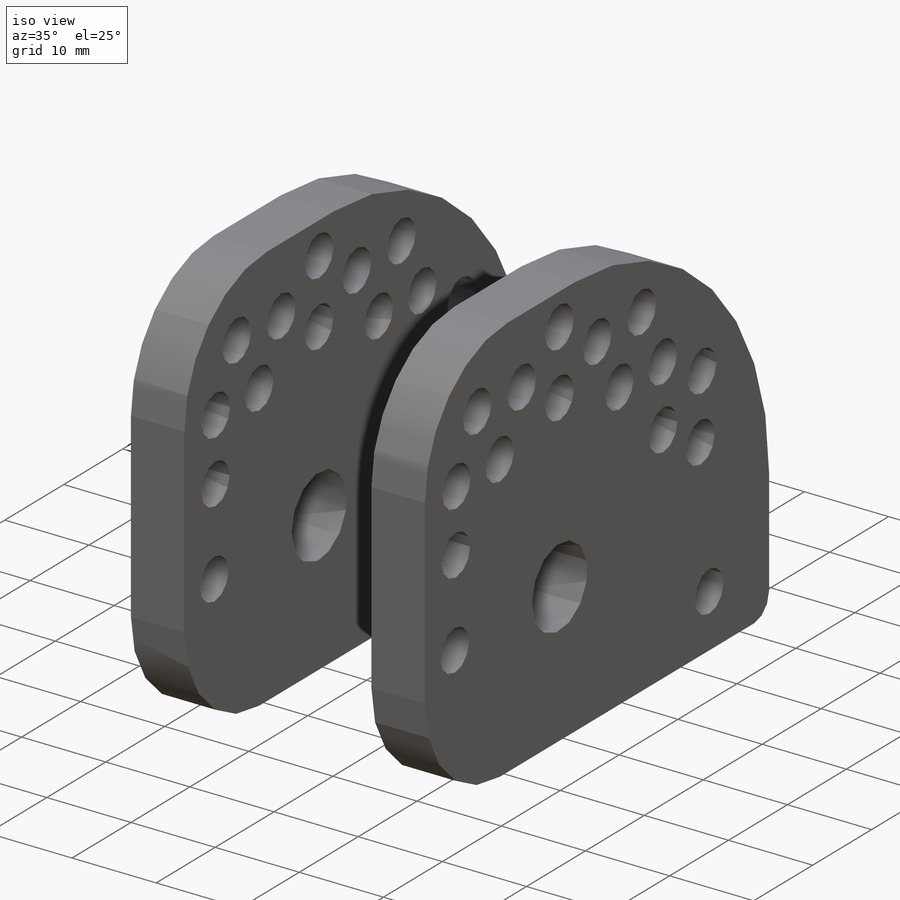
[diagram: iso view]
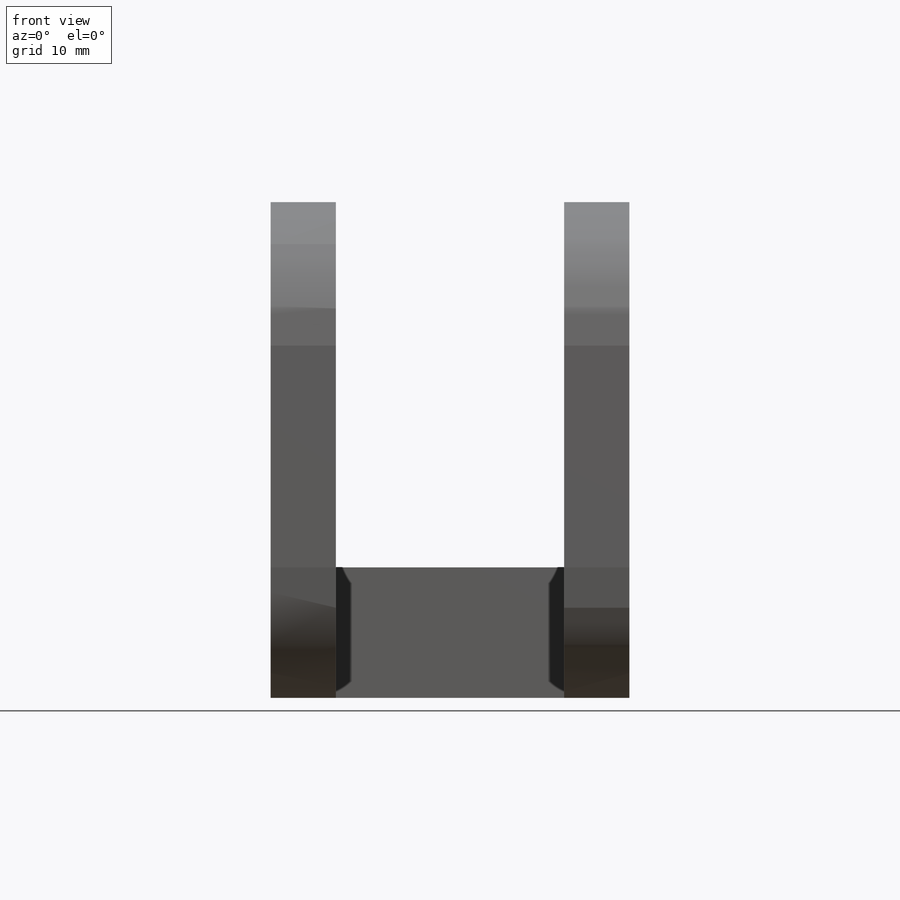
[diagram: front view]
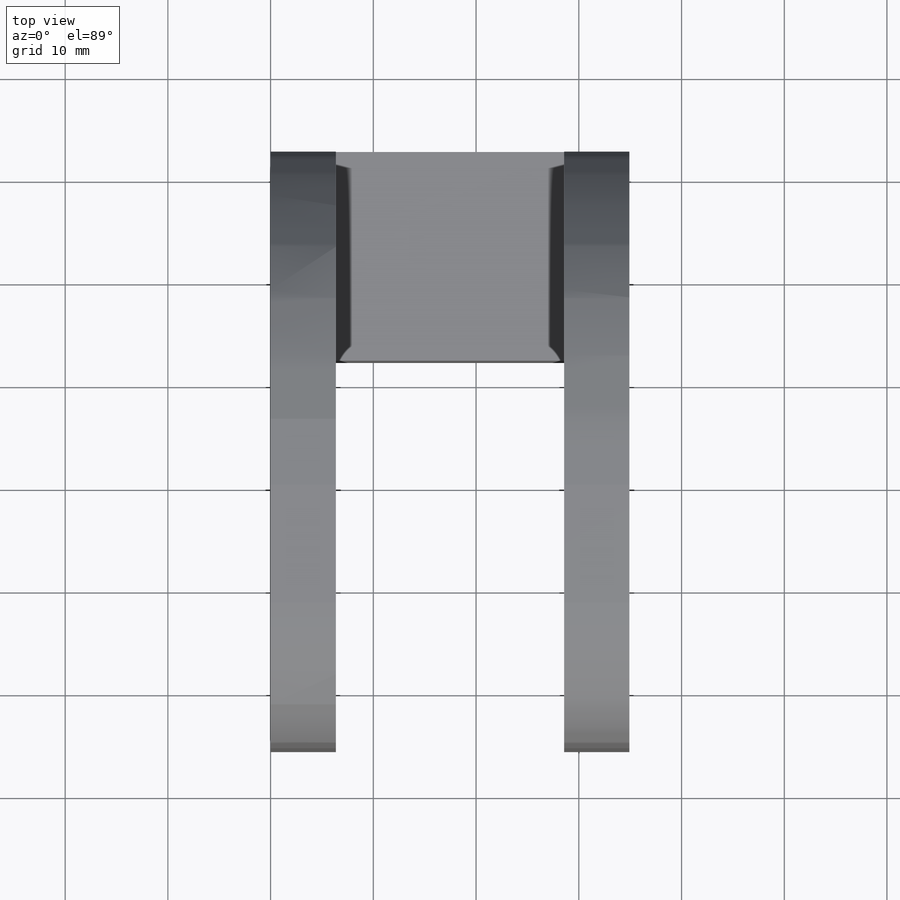
[diagram: top view]
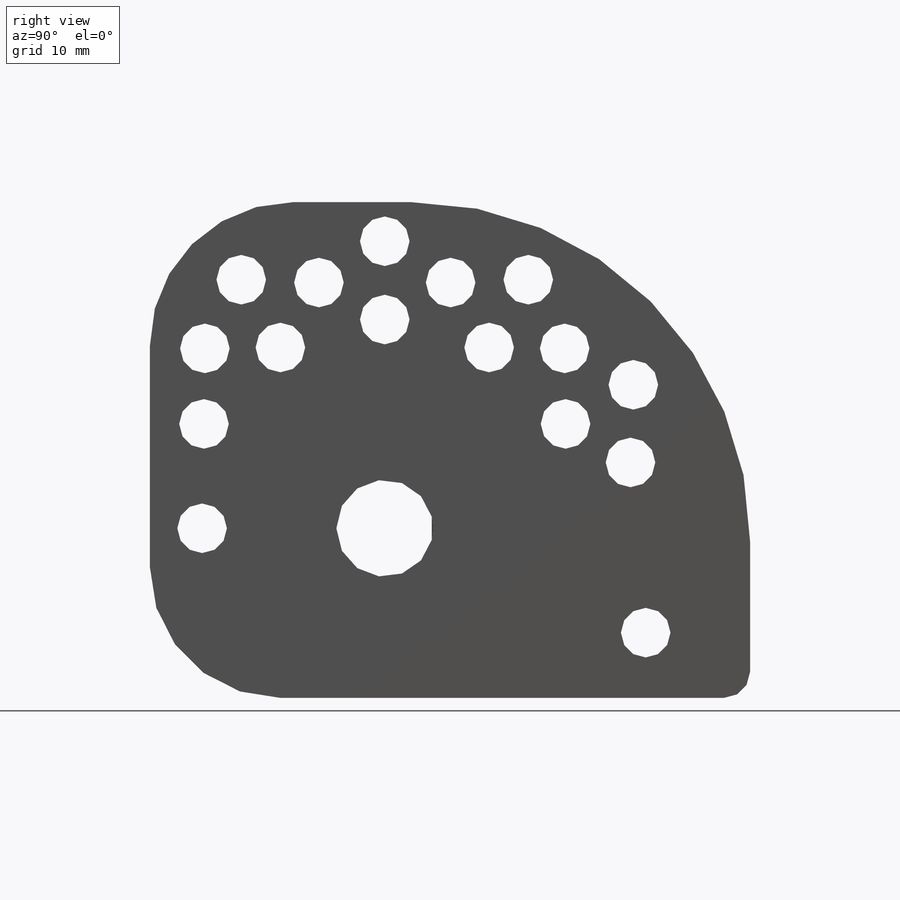
[diagram: right view]
SOLIDWORKS PART (.sldprt)
format: sldprt  version: not decoded by parser v0  size: 4,983,808 bytes
history: native  units: mm
features: sketch x38, cut_extrude x27, fillet x10, extrude x9, pattern_circular x3, material x1 (+17 scaffold rows collapsed; 6 parser-record rows omitted)
feature tree (111):
  scaffold x17  (default folders/planes/origin — collapsed)
  material  "6061-T6 (SS)"
  sketch  "Top Outline"  dims[c1.D11=6.35mm c1.D1=156.21mm c1.D2=33.02mm c1.D3=33.02mm c2.D2=33.02mm c2.D3=33.02mm c2.D4=22.86mm c2.D5=22.86mm c3.D4=22.86mm c3.D1=156.21mm c3.D3=33.02mm c4.D1=156.21mm c4.D2=22.86mm c4.D3=66.04mm c4.D4=33.02mm c4.D5=33.02mm c4.D6=56.515mm c4.D7=8.89mm c5.D3=66.04mm c5.D4=33.02mm c5.D5=25.4mm c5.D2=56.515mm c5.D6=22.86mm c5.D8=165.1mm c6.D2=22.86mm c6.D6=56.515mm c6.D9=73.66mm c6.D10=132.08mm c6.D8=266.7mm c7.D10=165.1mm c7.D11=80.01mm]
  sketch  "Side Outline"  dims[c1.D5=7.9248mm c1.D10=6.35mm c1.D1=156.21mm c1.D2=25.4mm c1.D3=8.255mm c1.D4=11.43mm c2.D3=8.255mm c2.D4=16.51mm c2.D6=73.66mm c2.D2=15.875mm c2.D7=~24.227425mm c3.D2=22.86mm c3.D7=15.24mm c3.D3=25.4mm c3.D8=8.89mm c3.D9=16.51mm c3.D11=179.832mm c3.D12=56.515mm]
  parser-record x6  (decoder bookkeeping rows leaked as tree rows — omitted from the tree; the rows remain in map.json)
  sketch  "Sketch1"  dims[c1.D4=8.89mm c1.D1=~142.797972mm c2.D1=~179.977373deg c3.D1=~142.797972mm c4.D1=~0.022627deg c5.D1=15.24mm c5.D2=12.7mm c5.D3=168.91mm]
  extrude  "Center MC Body "  Depth=9.525mm
  sketch  "Sketch2"  dims[D3=7.9248mm D1=8.89mm D2=16.51mm]
  cut_extrude  "Center MC Hole"  Depth=9.525mm
  sketch  "Sketch3"  dims[c1.D1=19.05mm c1.D2=25.4mm c1.D3=6.35mm c1.D4=66.675mm c1.D5=6.35mm c2.D3=8.89mm c2.D4=56.515mm c2.D5=12.7mm]
  cut_extrude  "Cut Slot"  Depth=9.525mm
  fillet  "Fillet1"  Radius=12.7mm
  fillet  "Fillet2"  Radius=12.7mm
  sketch  "Sketch5"
  cut_extrude  "Cut-Extrude1"  [1 undecoded]
  sketch  "Sketch55"  dims[D1=0.0mm]
  extrude  "Add Thickness 0.25"  Depth=6.35mm
  sketch  "Sketch56"  dims[D1=9.525mm D2=9.525mm D3=50.8mm]
  cut_extrude  "Cut MC Slot"  [1 undecoded]
  sketch  "Sketch6"  dims[D1=25.4mm D2=12.7mm D3=177.8mm]
  extrude  "Top Center Body"  Depth=15.875mm
  sketch  "Sketch7"  dims[c1.D1=25.4mm c1.D2=35.56mm c1.D3=6.35mm c2.D1=19.05mm c2.D2=58.42mm c2.D4=12.7mm]
  cut_extrude  "Cut-Extrude31"  [1 undecoded]
  sketch  "Sketch9"  dims[D1=6.35mm]
  cut_extrude  "TC-Cut Holes"  [1 undecoded]
  sketch  "Sketch11"  dims[c1.D1=9.525mm c1.D2=8.89mm c1.D3=7.9375mm c1.D4=58.42mm c1.D5=33.02mm c1.D6=9.525mm c1.D7=~15.884799mm c2.D5=15.875mm]
  cut_extrude  "TC-Cut Slots"  [1 undecoded]
  fillet  "Fillet8"  Radius=6.35mm
  fillet  "Fillet9"  Radius=3.175mm
  sketch  "Sketch12"
  cut_extrude  "Cut-Extrude2"  [1 undecoded]
  sketch  "Sketch13"  dims[c1.D1=12.7mm c1.D2=12.7mm c1.D3=3.81mm c2.D2=12.7mm c2.D1=6.35mm]
  extrude  "Boss-Extrude1"  [1 undecoded]
  fillet  "Fillet3"  Radius=3.175mm
  sketch  "Sketch14"  dims[D3=9.4234mm D1=27.94mm D2=22.86mm]
  extrude  "Boss-Extrude2"  Depth=9.525mm
  sketch  "Sketch15"
  cut_extrude  "Cut-Extrude3"  [1 undecoded]
  fillet  "Fillet for Brake Pivot"  Radius=6.35mm
  sketch  "Sketch16"  dims[c1.D1=15.24mm c1.D2=0.0mm c1.D3=15.24mm c2.D2=12.7mm]
  cut_extrude  "Cut for Throttle n Brake"  Depth=9.525mm
  sketch  "Sketch17"  dims[c1.D3=30.48mm c1.D4=4.826mm c1.D9=4.826mm c2.D3=25.4mm c2.D4=71.12mm c2.D1=58.42mm c2.D2=50.8mm c2.D5=~13.264571mm c3.D5=30.0deg c3.D6=~13.40688mm c4.D6=30.0deg c4.D7=15.24mm c5.D7=30.0deg c5.D8=~13.40688mm c6.D8=30.0deg c6.D9=21.59mm c7.D9=45.0deg c7.D10=21.59mm c8.D10=45.0deg c8.D3=47.625mm c8.D2=48.26mm c8.D4=23.495mm]
  extrude  "Boss-Extrude3"  Depth=9.525mm
  sketch  "Sketch44"  dims[D1=0.0mm]
  extrude  "Boss-Extrude4"  Depth=25.4mm
  sketch  "Sketch20"  dims[D1=25.4mm D2=50.8mm D3=63.5mm D4=35.56mm D5=4.826mm]
  cut_extrude  "Cut-Extrude6"  [1 undecoded]
  sketch  "Sketch21"  dims[c1.D1=40.64mm c1.D2=25.4mm c2.D2=30.0deg]
  cut_extrude  "Cut-Extrude7"  [1 undecoded]
  pattern_circular  "CirPattern2"  Count=5 Angle=30deg
  sketch  "Sketch22"  dims[c1.D1=49.53mm c1.D2=31.75mm c2.D2=45.0deg]
  cut_extrude  "Cut-Extrude10"  [1 undecoded]
  pattern_circular  "CirPattern3"  Count=5 Angle=30deg
  sketch  "Sketch24"  dims[c1.D1=55.88mm c1.D2=~14.017571mm c2.D2=60.0deg]
  cut_extrude  "Cut-Extrude11"  [1 undecoded]
  pattern_circular  "CirPattern4"  Count=4 Angle=30deg
  sketch  "Sketch48"  dims[D1=6.35mm]
  cut_extrude  "Cut-Extrude24"  Depth=38.1mm
  sketch  "Sketch49"  dims[D1=12.7mm]
  cut_extrude  "Cut-Extrude25"  [1 undecoded]
  fillet  "Fillet4"  Radius=12.7mm
  fillet  "Fillet5"  Radius=33.02mm
  fillet  "Fillet6"  Radius=13.97mm
  sketch  "Sketch53"  dims[D1=4.826mm D2=6.35mm D3=10.16mm]
  cut_extrude  "Cut-Extrude29"  [1 undecoded]
  fillet  "Fillet7"  Radius=2.54mm
  sketch  "Sketch26"  dims[D1=25.4mm D2=12.7mm D3=101.6mm D4=15.875mm]
  extrude  "Top Right Body"  Depth=15.875mm
  sketch  "Sketch33"
  cut_extrude  "Cut-Extrude14"  [1 undecoded]
  sketch  "Sketch34"  dims[D1=9.525mm D2=8.89mm D3=58.42mm D4=41.275mm D5=8.89mm D6=133.35mm]
  cut_extrude  "Cut-Extrude15"  [1 undecoded]
  sketch  "Sketch35"  dims[c1.D1=6.35mm c1.D2=9.525mm c2.D1=6.35mm]
  cut_extrude  "Cut-Extrude16"  [1 undecoded]
  sketch  "Sketch36"  dims[D1=6.35mm D2=30.48mm D3=76.2mm]
  cut_extrude  "Cut-Extrude17"  [1 undecoded]
  sketch  "Sketch52"  dims[D3=4.826mm D1=10.16mm D2=6.35mm]
  cut_extrude  "Cut-Extrude28"  Depth=15.24mm
  sketch  "Sketch37"  dims[D1=15.875mm D2=101.6mm D3=12.7mm D4=25.4mm]
  extrude  "Top Left Body"  Depth=15.875mm
  sketch  "Sketch38"
  cut_extrude  "Cut-Extrude18"  [1 undecoded]
  sketch  "Sketch40"  dims[D1=8.89mm D2=9.525mm D3=58.42mm D4=8.89mm D5=41.275mm D6=133.35mm]
  cut_extrude  "Cut-Extrude19"  [1 undecoded]
  sketch  "Sketch41"  dims[c1.D1=6.35mm c1.D2=50.165mm c2.D1=6.35mm c2.D3=50.165mm c2.D4=66.04mm c2.D2=58.42mm]
  cut_extrude  "Cut-Extrude20"  [1 undecoded]
  sketch  "Sketch42"  dims[c1.D1=6.35mm c1.D2=30.48mm c1.D3=76.2mm c1.D4=7.9375mm c1.D5=~8.414201mm c2.D4=7.9375mm]
  cut_extrude  "Cut-Extrude21"  [1 undecoded]
  sketch  "Sketch54"  dims[D3=4.826mm D1=6.35mm D2=10.16mm]
  cut_extrude  "Cut-Extrude30"  Depth=15.24mm
decode coverage: 60 of 87 modeling features carry decoded parameters
note: ~ marks probable driven/reference dimensions
note: 22 parameter values undecoded
summary: no parameter record found for 22 features
note: suppression state not decoded; provenance and decode notes live in map.json
